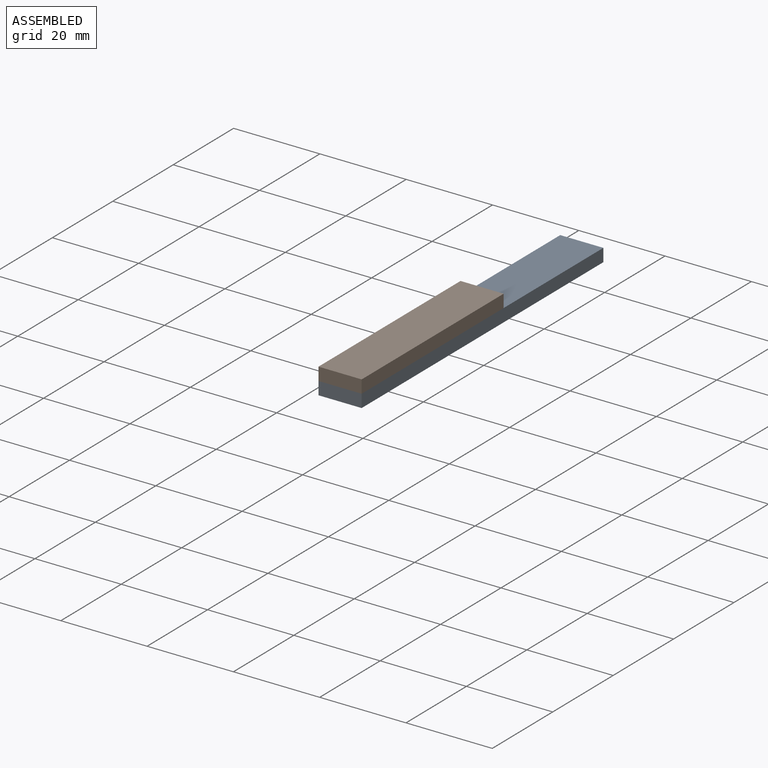
[diagram: assembled view]
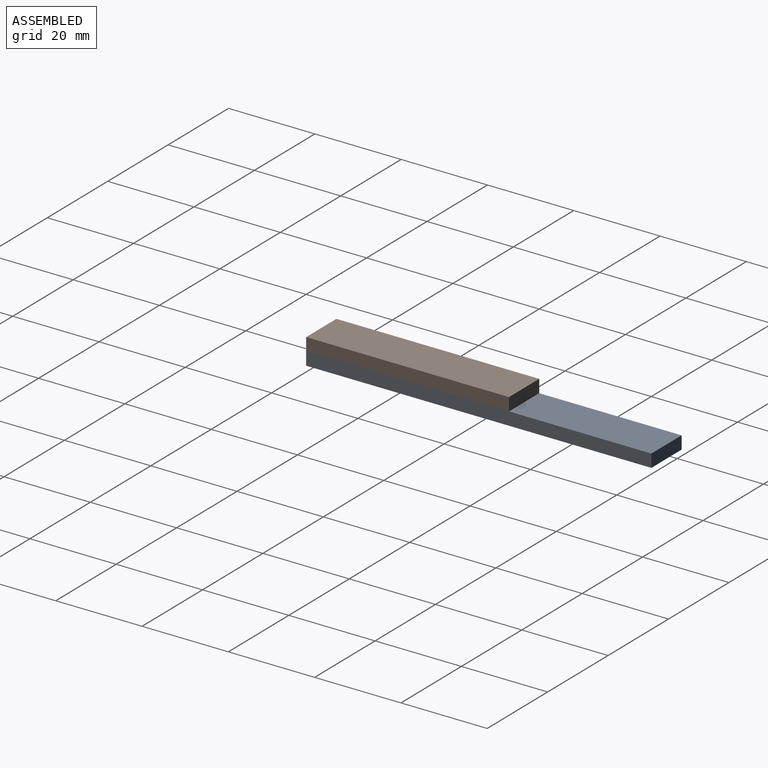
[diagram: assembled view, second angle]
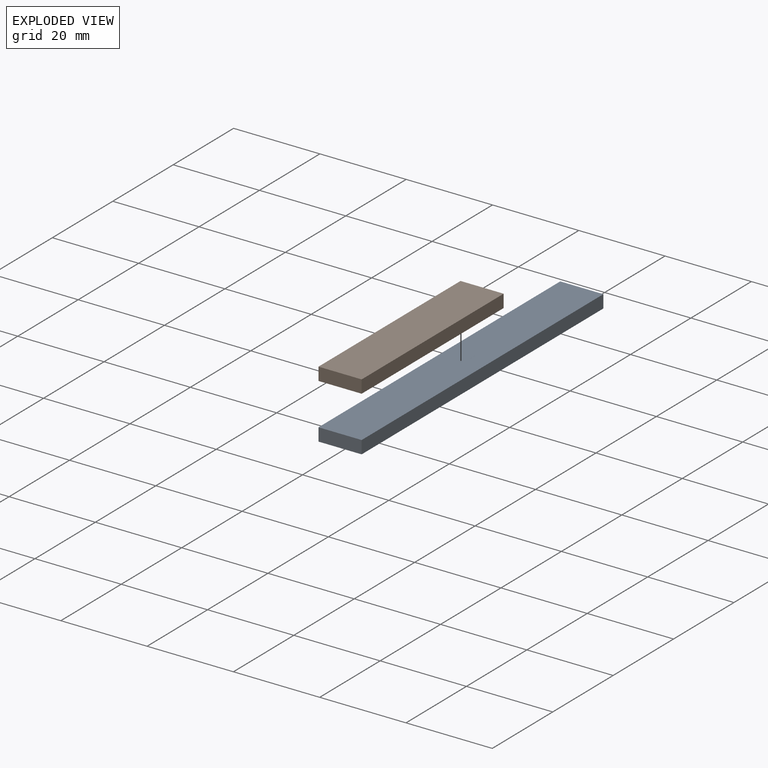
[diagram: exploded view]
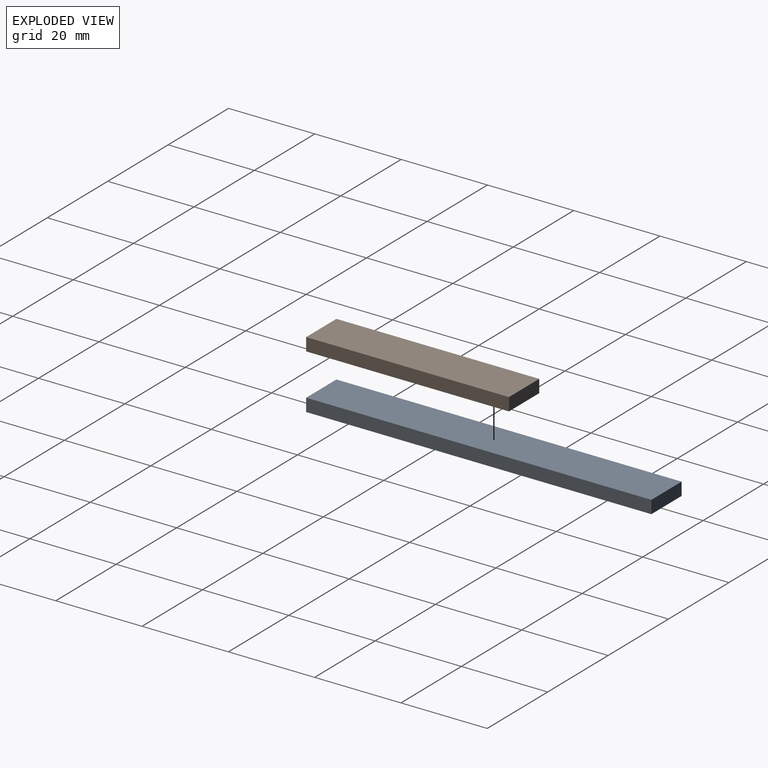
[diagram: exploded view, second angle]
ASSEMBLY  parts=2 mates=2
PART A: 6 faces, bbox 10x80x3 mm
  f0: plane 10x3mm, normal (0,1,0), area 30mm2, adj f1,f3,f4,f5
  f1: plane 80x3mm, normal (-1,0,0), area 240mm2, adj f0,f2,f4,f5
  f2: plane 10x3mm, normal (0,-1,0), area 30mm2, adj f1,f3,f4,f5
  f3: plane 80x3mm, normal (1,0,0), area 240mm2, adj f0,f2,f4,f5
  f4: plane 80x10mm, normal (0,0,1), area 800mm2, adj f0,f1,f2,f3
  f5: plane 80x10mm, normal (0,0,-1), area 800mm2, adj f0,f1,f2,f3
PART B: 6 faces, bbox 10x47x3 mm
  f0: plane 10x3mm, normal (0,-1,0), area 30mm2, adj f1,f3,f4,f5
  f1: plane 47x3mm, normal (1,0,0), area 141mm2, adj f0,f2,f4,f5
  f2: plane 10x3mm, normal (0,1,0), area 30mm2, adj f1,f3,f4,f5
  f3: plane 47x3mm, normal (-1,0,0), area 141mm2, adj f0,f2,f4,f5
  f4: plane 47x10mm, normal (0,0,1), area 470mm2, adj f0,f1,f2,f3
  f5: plane 47x10mm, normal (0,0,-1), area 470mm2, adj f0,f1,f2,f3
PLACE A t=(-19.57,11.83,5.44)mm
PLACE B t=(31.62,-38.19,8.44)mm
MATE planar A.f2 <-> B.f0  axis (0,-1,0) through (-19.57,-28.17,8.44)mm
MATE planar A.f4 <-> B.f5  axis (0,0,1) through (-19.57,11.83,8.44)mm
